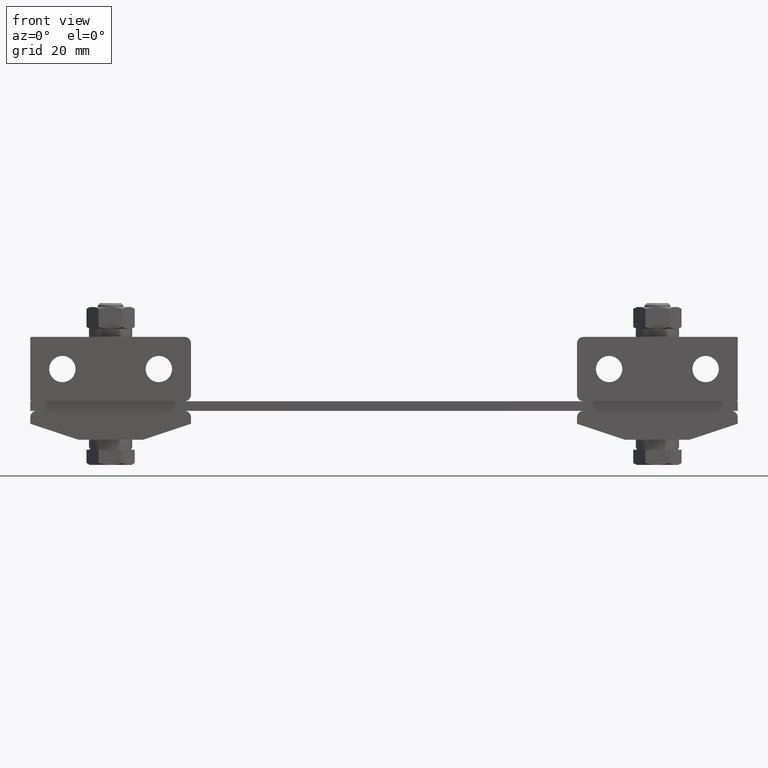
[diagram: clean part render]
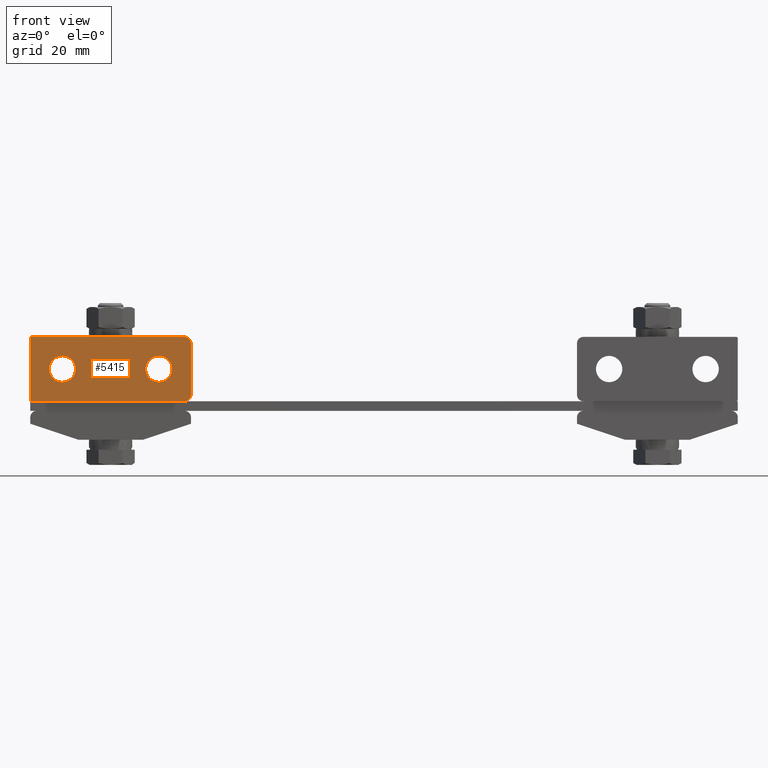
[diagram: same view with one face highlighted and labeled with its STEP entity id]
A machine part, front view. The second image highlights one B-rep face of the part: STEP entity #5415.
In plain terms, the highlighted planar face has unit normal (-0, 1, 0).
Its self-contained STEP definition (entity closure, byte-faithful):
#216 = EDGE_CURVE ( 'NONE', #1557, #2996, #16433, .T. ) ;
#353 = AXIS2_PLACEMENT_3D ( 'NONE', #19990, #13692, #9089 ) ;
#696 = DIRECTION ( 'NONE',  ( 0.0000000000000000000, 0.0000000000000000000, -1.000000000000000000 ) ) ;
#775 = VECTOR ( 'NONE', #15362, 1000.000000000000000 ) ;
#1125 = LINE ( 'NONE', #3541, #12599 ) ;
#1346 = CIRCLE ( 'NONE', #12310, 4.100000000000001400 ) ;
#1363 = CARTESIAN_POINT ( 'NONE',  ( -60.00000000000000000, -15.50000000000000000, 23.00000000000000000 ) ) ;
#1557 = VERTEX_POINT ( 'NONE', #18135 ) ;
#1678 = CARTESIAN_POINT ( 'NONE',  ( -109.5000000000000000, -15.50000000000000000, 3.000000000000000000 ) ) ;
#1891 = CARTESIAN_POINT ( 'NONE',  ( -70.00000000000000000, -15.50000000000000000, 13.00000000000000000 ) ) ;
#1990 = EDGE_LOOP ( 'NONE', ( #17553, #10056, #6241, #12917, #10657, #6460, #19944, #17963 ) ) ;
#2287 = CARTESIAN_POINT ( 'NONE',  ( -62.00000000000000000, -15.50000000000000000, 5.000000000000000000 ) ) ;
#2806 = EDGE_CURVE ( 'NONE', #2996, #1557, #12410, .T. ) ;
#2996 = VERTEX_POINT ( 'NONE', #12984 ) ;
#3115 = CIRCLE ( 'NONE', #13400, 4.100000000000001400 ) ;
#3541 = CARTESIAN_POINT ( 'NONE',  ( -60.00000000000000000, -15.50000000000000000, 3.000000000000000000 ) ) ;
#3889 = DIRECTION ( 'NONE',  ( -4.996003610813210300E-016, 1.000000000000000000, 0.0000000000000000000 ) ) ;
#3974 = EDGE_CURVE ( 'NONE', #20072, #16775, #1346, .T. ) ;
#4049 = ORIENTED_EDGE ( 'NONE', *, *, #2806, .T. ) ;
#4357 = AXIS2_PLACEMENT_3D ( 'NONE', #8702, #14731, #13457 ) ;
#5239 = DIRECTION ( 'NONE',  ( 4.996003610813210300E-016, -1.000000000000000000, -0.0000000000000000000 ) ) ;
#5415 = ADVANCED_FACE ( 'NONE', ( #10597, #15855, #11773 ), #5550, .F. ) ;
#5418 = VERTEX_POINT ( 'NONE', #18007 ) ;
#5550 = PLANE ( 'NONE',  #4357 ) ;
#5759 = CIRCLE ( 'NONE', #18547, 0.5000000000000004400 ) ;
#5782 = EDGE_CURVE ( 'NONE', #20037, #13155, #17845, .T. ) ;
#5785 = CARTESIAN_POINT ( 'NONE',  ( -110.0000000000000000, -15.50000000000000000, 22.50000000000000000 ) ) ;
#6049 = CARTESIAN_POINT ( 'NONE',  ( -100.0000000000000000, -15.50000000000000000, 17.10000000000000100 ) ) ;
#6241 = ORIENTED_EDGE ( 'NONE', *, *, #6993, .F. ) ;
#6377 = EDGE_CURVE ( 'NONE', #17832, #9806, #17837, .T. ) ;
#6447 = CARTESIAN_POINT ( 'NONE',  ( -62.00000000000000000, -15.50000000000000000, 23.00000000000000000 ) ) ;
#6460 = ORIENTED_EDGE ( 'NONE', *, *, #19794, .T. ) ;
#6700 = DIRECTION ( 'NONE',  ( 4.996003610813210300E-016, -1.000000000000000000, -0.0000000000000000000 ) ) ;
#6805 = AXIS2_PLACEMENT_3D ( 'NONE', #2287, #6700, #696 ) ;
#6870 = EDGE_CURVE ( 'NONE', #9806, #12940, #8831, .T. ) ;
#6993 = EDGE_CURVE ( 'NONE', #5418, #18999, #7110, .T. ) ;
#7110 = LINE ( 'NONE', #17252, #13435 ) ;
#7959 = DIRECTION ( 'NONE',  ( -4.996003610813210300E-016, 1.000000000000000000, 0.0000000000000000000 ) ) ;
#8039 = AXIS2_PLACEMENT_3D ( 'NONE', #18678, #15536, #11083 ) ;
#8093 = DIRECTION ( 'NONE',  ( 0.0000000000000000000, 0.0000000000000000000, -1.000000000000000000 ) ) ;
#8098 = EDGE_CURVE ( 'NONE', #16775, #20072, #3115, .T. ) ;
#8282 = ORIENTED_EDGE ( 'NONE', *, *, #3974, .T. ) ;
#8702 = CARTESIAN_POINT ( 'NONE',  ( -60.00000000000000000, -15.50000000000000000, 3.000000000000000000 ) ) ;
#8831 = LINE ( 'NONE', #1363, #775 ) ;
#9089 = DIRECTION ( 'NONE',  ( 0.0000000000000000000, 0.0000000000000000000, -1.000000000000000000 ) ) ;
#9104 = CARTESIAN_POINT ( 'NONE',  ( -62.00000000000000000, -15.50000000000000000, 3.000000000000000000 ) ) ;
#9351 = VERTEX_POINT ( 'NONE', #9651 ) ;
#9651 = CARTESIAN_POINT ( 'NONE',  ( -60.00000000000000000, -15.50000000000000000, 5.000000000000000000 ) ) ;
#9806 = VERTEX_POINT ( 'NONE', #6447 ) ;
#10056 = ORIENTED_EDGE ( 'NONE', *, *, #18975, .T. ) ;
#10361 = DIRECTION ( 'NONE',  ( 0.0000000000000000000, 0.0000000000000000000, -1.000000000000000000 ) ) ;
#10502 = CARTESIAN_POINT ( 'NONE',  ( -100.0000000000000000, -15.50000000000000000, 13.00000000000000000 ) ) ;
#10513 = CARTESIAN_POINT ( 'NONE',  ( -109.5000000000000000, -15.50000000000000000, 22.50000000000000000 ) ) ;
#10597 = FACE_BOUND ( 'NONE', #17101, .T. ) ;
#10657 = ORIENTED_EDGE ( 'NONE', *, *, #5782, .F. ) ;
#11078 = CARTESIAN_POINT ( 'NONE',  ( -100.0000000000000000, -15.50000000000000000, 8.899999999999998600 ) ) ;
#11083 = DIRECTION ( 'NONE',  ( 0.0000000000000000000, 0.0000000000000000000, -1.000000000000000000 ) ) ;
#11385 = AXIS2_PLACEMENT_3D ( 'NONE', #1891, #7959, #8093 ) ;
#11735 = CARTESIAN_POINT ( 'NONE',  ( -60.00000000000000000, -15.50000000000000000, 21.00000000000000000 ) ) ;
#11773 = FACE_OUTER_BOUND ( 'NONE', #1990, .T. ) ;
#11858 = CIRCLE ( 'NONE', #12522, 0.5000000000000000000 ) ;
#11864 = CARTESIAN_POINT ( 'NONE',  ( -100.0000000000000000, -15.50000000000000000, 13.00000000000000000 ) ) ;
#12310 = AXIS2_PLACEMENT_3D ( 'NONE', #11864, #3889, #17949 ) ;
#12410 = CIRCLE ( 'NONE', #11385, 4.100000000000001400 ) ;
#12522 = AXIS2_PLACEMENT_3D ( 'NONE', #14561, #5239, #19259 ) ;
#12599 = VECTOR ( 'NONE', #19252, 1000.000000000000000 ) ;
#12917 = ORIENTED_EDGE ( 'NONE', *, *, #16098, .T. ) ;
#12940 = VERTEX_POINT ( 'NONE', #15914 ) ;
#12973 = ORIENTED_EDGE ( 'NONE', *, *, #216, .T. ) ;
#12984 = CARTESIAN_POINT ( 'NONE',  ( -70.00000000000000000, -15.50000000000000000, 17.10000000000000100 ) ) ;
#13155 = VERTEX_POINT ( 'NONE', #1678 ) ;
#13182 = EDGE_LOOP ( 'NONE', ( #8282, #18083 ) ) ;
#13400 = AXIS2_PLACEMENT_3D ( 'NONE', #10502, #16848, #10361 ) ;
#13435 = VECTOR ( 'NONE', #17318, 1000.000000000000000 ) ;
#13457 = DIRECTION ( 'NONE',  ( 0.0000000000000000000, 0.0000000000000000000, -1.000000000000000000 ) ) ;
#13554 = DIRECTION ( 'NONE',  ( 0.0000000000000000000, 0.0000000000000000000, -1.000000000000000000 ) ) ;
#13692 = DIRECTION ( 'NONE',  ( -4.996003610813210300E-016, 1.000000000000000000, 0.0000000000000000000 ) ) ;
#14561 = CARTESIAN_POINT ( 'NONE',  ( -109.5000000000000000, -15.50000000000000000, 3.500000000000000000 ) ) ;
#14731 = DIRECTION ( 'NONE',  ( -4.996003610813210300E-016, 1.000000000000000000, 0.0000000000000000000 ) ) ;
#15362 = DIRECTION ( 'NONE',  ( -1.000000000000000000, 4.996003610813210300E-016, 0.0000000000000000000 ) ) ;
#15536 = DIRECTION ( 'NONE',  ( 4.996003610813210300E-016, -1.000000000000000000, -0.0000000000000000000 ) ) ;
#15855 = FACE_BOUND ( 'NONE', #13182, .T. ) ;
#15914 = CARTESIAN_POINT ( 'NONE',  ( -109.5000000000000000, -15.50000000000000000, 23.00000000000000000 ) ) ;
#16098 = EDGE_CURVE ( 'NONE', #5418, #13155, #11858, .T. ) ;
#16433 = CIRCLE ( 'NONE', #353, 4.100000000000001400 ) ;
#16432 = CARTESIAN_POINT ( 'NONE',  ( -60.00000000000000000, -15.50000000000000000, 3.000000000000000000 ) ) ;
#16514 = DIRECTION ( 'NONE',  ( 4.996003610813210300E-016, -1.000000000000000000, -0.0000000000000000000 ) ) ;
#16775 = VERTEX_POINT ( 'NONE', #6049 ) ;
#16781 = DIRECTION ( 'NONE',  ( -1.000000000000000000, 4.996003610813210300E-016, 0.0000000000000000000 ) ) ;
#16848 = DIRECTION ( 'NONE',  ( -4.996003610813210300E-016, 1.000000000000000000, 0.0000000000000000000 ) ) ;
#17101 = EDGE_LOOP ( 'NONE', ( #12973, #4049 ) ) ;
#17252 = CARTESIAN_POINT ( 'NONE',  ( -110.0000000000000000, -15.50000000000000000, 3.000000000000000000 ) ) ;
#17318 = DIRECTION ( 'NONE',  ( 0.0000000000000000000, 0.0000000000000000000, 1.000000000000000000 ) ) ;
#17553 = ORIENTED_EDGE ( 'NONE', *, *, #6870, .T. ) ;
#17767 = CIRCLE ( 'NONE', #6805, 2.000000000000000000 ) ;
#17832 = VERTEX_POINT ( 'NONE', #11735 ) ;
#17837 = CIRCLE ( 'NONE', #8039, 1.999999999999998200 ) ;
#17845 = LINE ( 'NONE', #16432, #19070 ) ;
#17949 = DIRECTION ( 'NONE',  ( 0.0000000000000000000, 0.0000000000000000000, -1.000000000000000000 ) ) ;
#17963 = ORIENTED_EDGE ( 'NONE', *, *, #6377, .T. ) ;
#18007 = CARTESIAN_POINT ( 'NONE',  ( -110.0000000000000000, -15.50000000000000000, 3.500000000000000000 ) ) ;
#18083 = ORIENTED_EDGE ( 'NONE', *, *, #8098, .T. ) ;
#18135 = CARTESIAN_POINT ( 'NONE',  ( -70.00000000000000000, -15.50000000000000000, 8.899999999999998600 ) ) ;
#18547 = AXIS2_PLACEMENT_3D ( 'NONE', #10513, #16514, #13554 ) ;
#18678 = CARTESIAN_POINT ( 'NONE',  ( -62.00000000000000000, -15.50000000000000000, 21.00000000000000000 ) ) ;
#18731 = EDGE_CURVE ( 'NONE', #9351, #17832, #1125, .T. ) ;
#18975 = EDGE_CURVE ( 'NONE', #12940, #18999, #5759, .T. ) ;
#18999 = VERTEX_POINT ( 'NONE', #5785 ) ;
#19070 = VECTOR ( 'NONE', #16781, 1000.000000000000000 ) ;
#19252 = DIRECTION ( 'NONE',  ( 0.0000000000000000000, 0.0000000000000000000, 1.000000000000000000 ) ) ;
#19259 = DIRECTION ( 'NONE',  ( 0.0000000000000000000, 0.0000000000000000000, -1.000000000000000000 ) ) ;
#19794 = EDGE_CURVE ( 'NONE', #20037, #9351, #17767, .T. ) ;
#19944 = ORIENTED_EDGE ( 'NONE', *, *, #18731, .T. ) ;
#19990 = CARTESIAN_POINT ( 'NONE',  ( -70.00000000000000000, -15.50000000000000000, 13.00000000000000000 ) ) ;
#20037 = VERTEX_POINT ( 'NONE', #9104 ) ;
#20072 = VERTEX_POINT ( 'NONE', #11078 ) ;